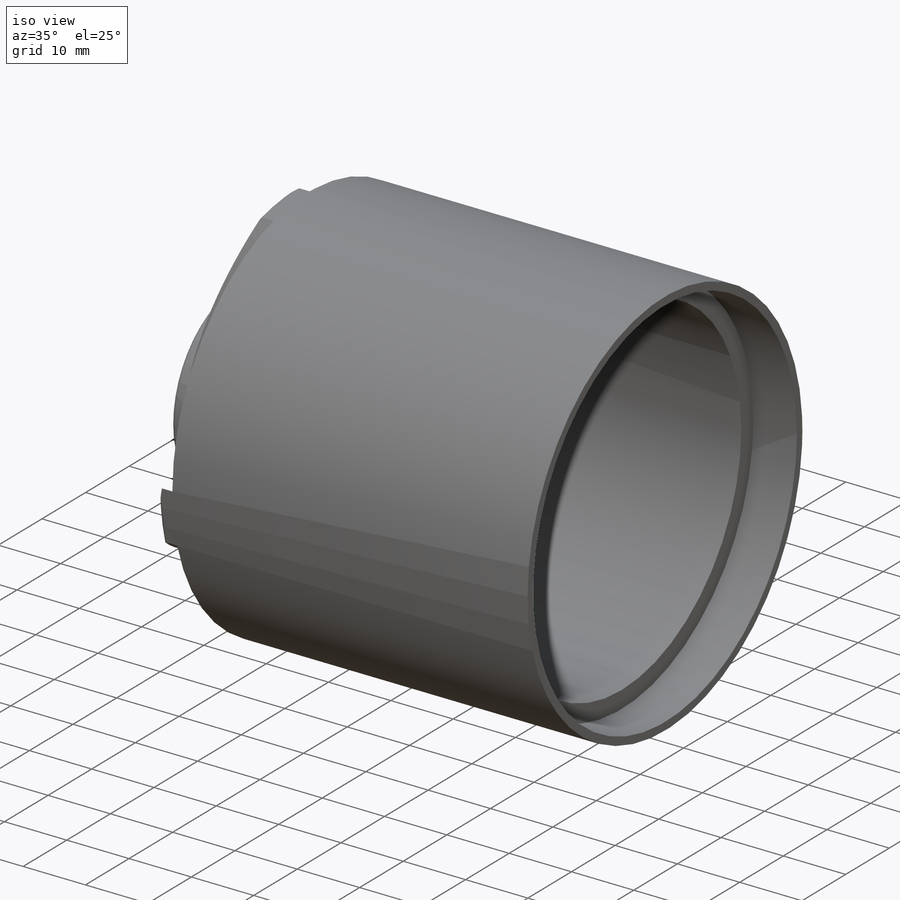
[diagram: iso view]
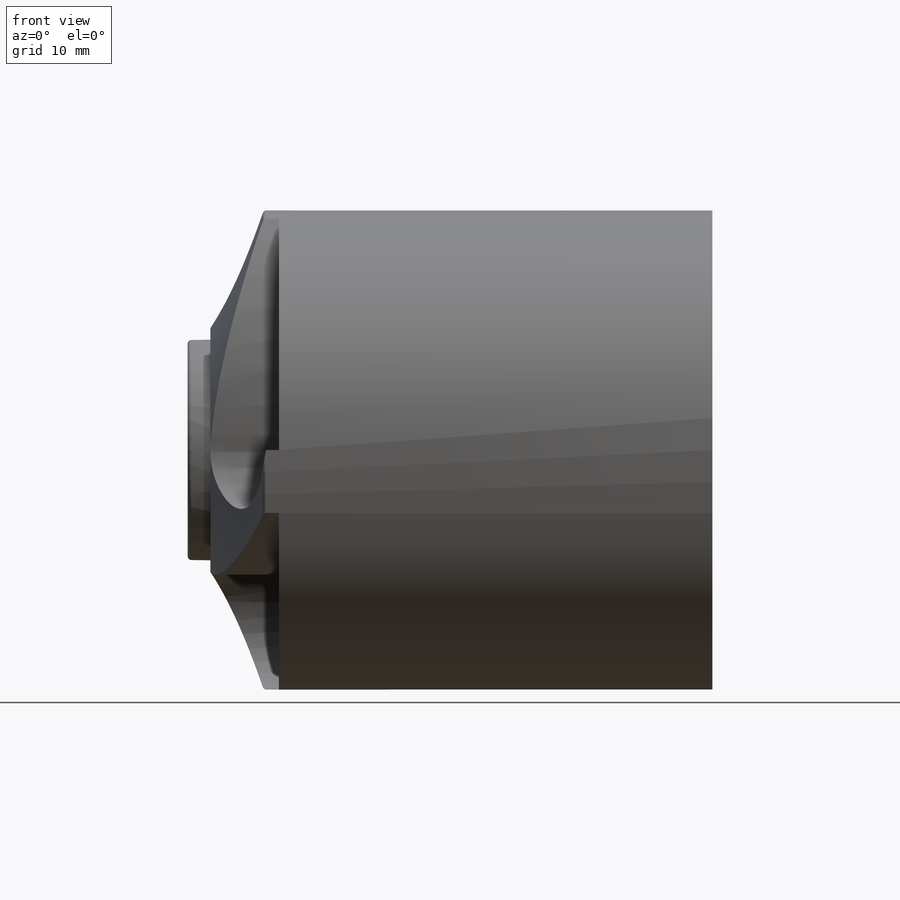
[diagram: front view]
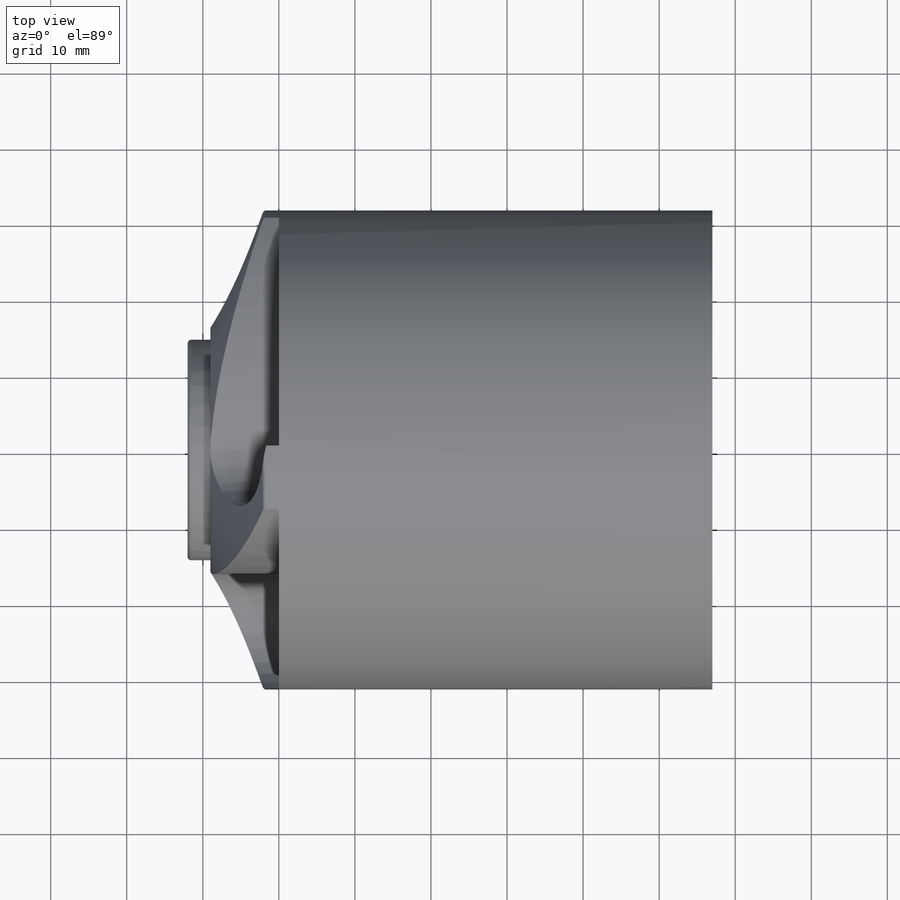
[diagram: top view]
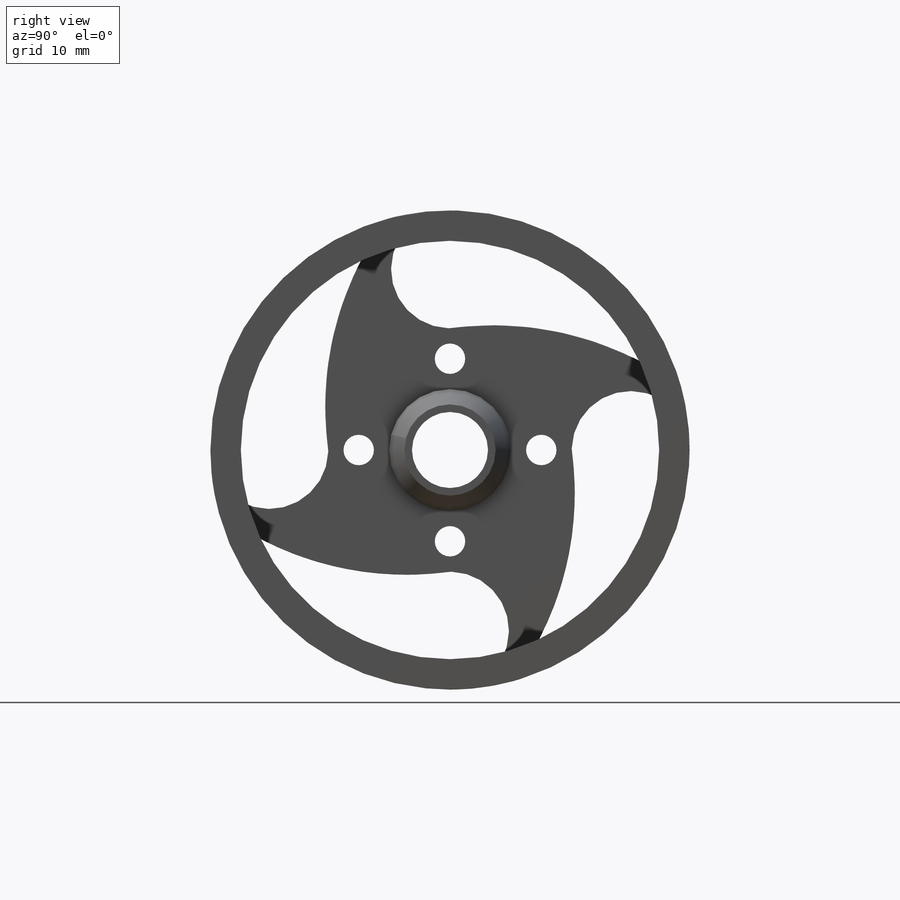
[diagram: right view]
SOLIDWORKS PART (.sldprt)
format: sldprt  version: not decoded by parser v0  size: 336,384 bytes
history: native  units: mm
features: sketch x5, extrude x3, cut_extrude x2, chamfer x2, material x1, fillet x1 (+11 scaffold rows collapsed)
feature tree (25):
  scaffold x11  (default folders/planes/origin — collapsed)
  material  "Material <not specified>"
  sketch  "Sketch1"  dims[D1=63.0mm D2=4.0mm]
  extrude  "Extrude1"  Depth=67mm
  sketch  "Sketch2"  dims[D1=10.0mm D2=63.0mm D3=32.0mm D5=4.0mm D4=12.0mm]
  extrude  "Extrude2"  Depth=12mm
  sketch  "Sketch3"  dims[D1=29.0mm]
  cut_extrude  "Extrude3"  Depth=3mm
  chamfer  "Chamfer1"  Distance=7mm Angle=65.6deg
  fillet  "Fillet1"  Radius=0.5mm
  sketch  "Sketch4"  dims[D1=63.0mm D2=60.5mm]
  cut_extrude  "Extrude4"  Depth=7mm
  sketch  "Sketch5"  dims[c1.D1=10.0mm c1.D2=10.0mm c2.D1=~2.041841mm c2.D2=3.0mm]
  extrude  "Extrude5"  Depth=10.4mm
  chamfer  "Chamfer2"  Distance=2mm Angle=76.8deg
decode coverage: 13 of 13 modeling features carry decoded parameters
note: ~ marks probable driven/reference dimensions
note: suppression state not decoded; provenance and decode notes live in map.json
